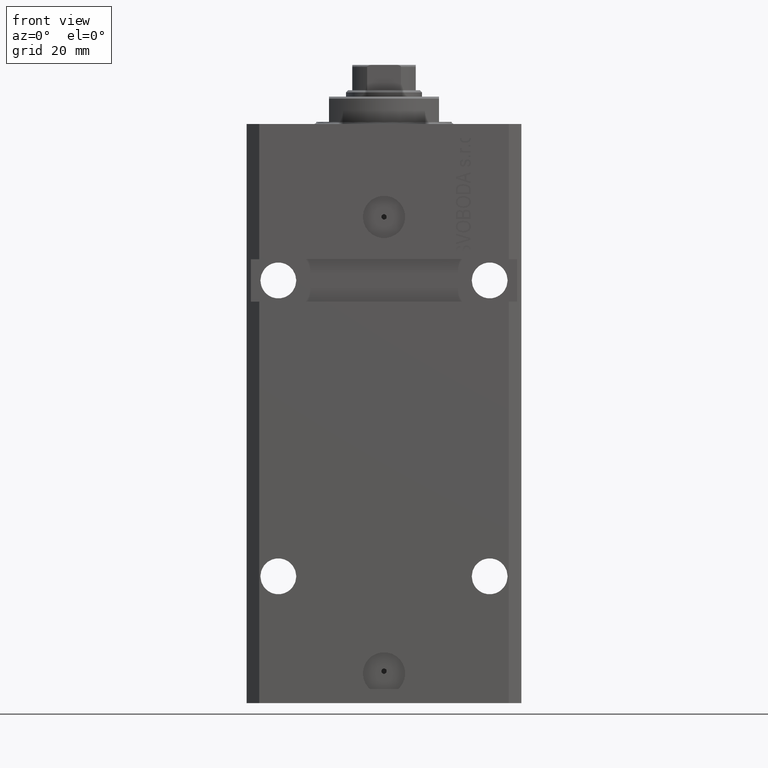
[diagram: clean part render]
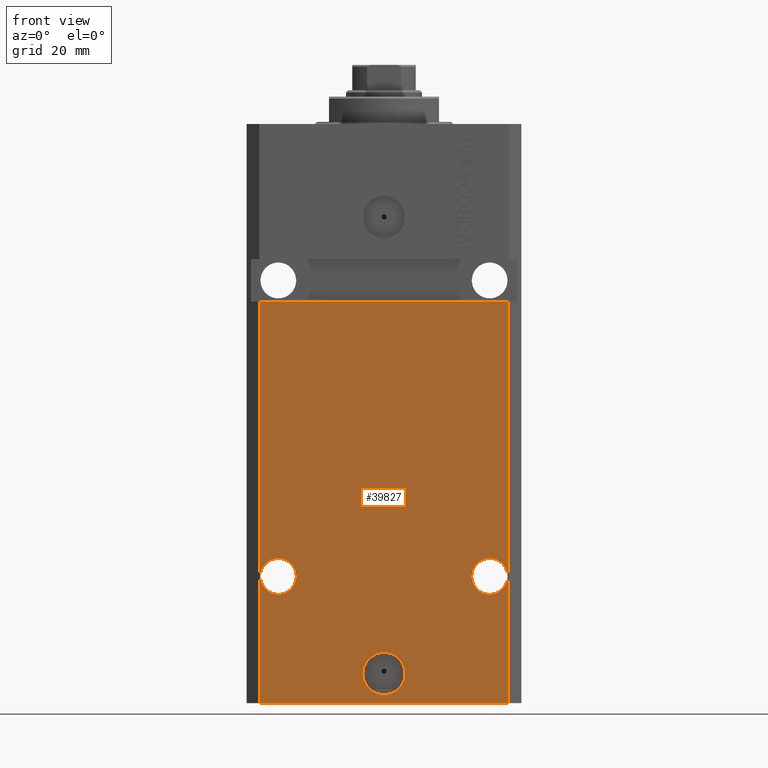
[diagram: same view with one face highlighted and labeled with its STEP entity id]
A machine part, front view. The second image highlights one B-rep face of the part: STEP entity #39827.
In plain terms, the highlighted planar face has unit normal (0, -1, 0).
Its self-contained STEP definition (entity closure, byte-faithful):
#122 = ORIENTED_EDGE ( 'NONE', *, *, #18421, .T. ) ;
#819 = ORIENTED_EDGE ( 'NONE', *, *, #22085, .T. ) ;
#916 = ORIENTED_EDGE ( 'NONE', *, *, #27624, .F. ) ;
#1863 = VECTOR ( 'NONE', #29523, 1000.000000000000000 ) ;
#2477 = EDGE_CURVE ( 'NONE', #41288, #37267, #16300, .T. ) ;
#3043 = DIRECTION ( 'NONE',  ( -1.000000000000000000, 0.000000000000000000, 0.000000000000000000 ) ) ;
#3954 = DIRECTION ( 'NONE',  ( 1.176083712526788232E-16, -1.000000000000000000, 0.000000000000000000 ) ) ;
#4614 = EDGE_CURVE ( 'NONE', #25991, #37765, #7099, .T. ) ;
#5505 = VERTEX_POINT ( 'NONE', #9226 ) ;
#5695 = CARTESIAN_POINT ( 'NONE',  ( 29.49999999999650058, -22.49999999999949196, -41.99999999999998579 ) ) ;
#5844 = CARTESIAN_POINT ( 'NONE',  ( -5.000000000000003553, -22.49999999999949551, -130.0000000000000000 ) ) ;
#5951 = DIRECTION ( 'NONE',  ( -1.000000000000000000, 0.000000000000000000, 0.000000000000000000 ) ) ;
#6089 = EDGE_LOOP ( 'NONE', ( #916, #39915, #819, #122 ) ) ;
#7099 = LINE ( 'NONE', #15114, #9283 ) ;
#7357 = AXIS2_PLACEMENT_3D ( 'NONE', #14211, #3954, #7626 ) ;
#7590 = EDGE_CURVE ( 'NONE', #37267, #41288, #39744, .T. ) ;
#7611 = VERTEX_POINT ( 'NONE', #9612 ) ;
#7626 = DIRECTION ( 'NONE',  ( 1.000000000000000000, 0.000000000000000000, 0.000000000000000000 ) ) ;
#8156 = EDGE_CURVE ( 'NONE', #12591, #47403, #47579, .T. ) ;
#8184 = ORIENTED_EDGE ( 'NONE', *, *, #31926, .F. ) ;
#9226 = CARTESIAN_POINT ( 'NONE',  ( 29.24999999998906119, -22.49999999999949196, -107.0000000000000000 ) ) ;
#9283 = VECTOR ( 'NONE', #33408, 1000.000000000000000 ) ;
#9612 = CARTESIAN_POINT ( 'NONE',  ( 20.75000000001096012, -22.49999999999949196, -107.0000000000000000 ) ) ;
#10598 = CARTESIAN_POINT ( 'NONE',  ( -29.49999999999650413, -22.49999999999949907, -137.0000000000000000 ) ) ;
#11730 = EDGE_CURVE ( 'NONE', #47403, #12591, #33652, .T. ) ;
#12591 = VERTEX_POINT ( 'NONE', #21076 ) ;
#12688 = AXIS2_PLACEMENT_3D ( 'NONE', #26746, #41640, #12857 ) ;
#12857 = DIRECTION ( 'NONE',  ( 1.000000000000000000, 0.000000000000000000, 0.000000000000000000 ) ) ;
#13446 = EDGE_CURVE ( 'NONE', #7611, #5505, #33683, .T. ) ;
#14207 = EDGE_LOOP ( 'NONE', ( #45635, #25629 ) ) ;
#14211 = CARTESIAN_POINT ( 'NONE',  ( 25.00000000000001066, -22.49999999999949196, -107.0000000000000000 ) ) ;
#15099 = LINE ( 'NONE', #18753, #17346 ) ;
#15114 = CARTESIAN_POINT ( 'NONE',  ( -29.49999999999650413, -22.49999999999949907, -137.0000000000000000 ) ) ;
#16219 = CARTESIAN_POINT ( 'NONE',  ( -29.49999999999650413, -22.49999999999949907, -137.0000000000000000 ) ) ;
#16300 = CIRCLE ( 'NONE', #31894, 5.000000000000006217 ) ;
#16369 = VERTEX_POINT ( 'NONE', #5695 ) ;
#16451 = DIRECTION ( 'NONE',  ( 1.176083712526788232E-16, -1.000000000000000000, 0.000000000000000000 ) ) ;
#16530 = EDGE_LOOP ( 'NONE', ( #8184, #34459 ) ) ;
#16701 = DIRECTION ( 'NONE',  ( 1.000000000000000000, 1.176083712526788232E-16, 0.000000000000000000 ) ) ;
#17346 = VECTOR ( 'NONE', #37778, 1000.000000000000000 ) ;
#17506 = VECTOR ( 'NONE', #16701, 1000.000000000000000 ) ;
#18421 = EDGE_CURVE ( 'NONE', #23924, #16369, #33190, .T. ) ;
#18753 = CARTESIAN_POINT ( 'NONE',  ( -32.49999999999650413, -22.49999999999949907, -41.99999999999999289 ) ) ;
#20121 = CARTESIAN_POINT ( 'NONE',  ( 2.646188353185214061E-15, -22.49999999999949551, -130.0000000000000000 ) ) ;
#21076 = CARTESIAN_POINT ( 'NONE',  ( -29.24999999998905409, -22.49999999999949907, -107.0000000000000000 ) ) ;
#22085 = EDGE_CURVE ( 'NONE', #25991, #23924, #39144, .T. ) ;
#23022 = ORIENTED_EDGE ( 'NONE', *, *, #2477, .F. ) ;
#23924 = VERTEX_POINT ( 'NONE', #46492 ) ;
#25629 = ORIENTED_EDGE ( 'NONE', *, *, #8156, .F. ) ;
#25717 = AXIS2_PLACEMENT_3D ( 'NONE', #36913, #44477, #3043 ) ;
#25991 = VERTEX_POINT ( 'NONE', #30911 ) ;
#26746 = CARTESIAN_POINT ( 'NONE',  ( 25.00000000000001066, -22.49999999999949196, -107.0000000000000000 ) ) ;
#27624 = EDGE_CURVE ( 'NONE', #37765, #16369, #15099, .T. ) ;
#27643 = DIRECTION ( 'NONE',  ( 1.176083712526788232E-16, -1.000000000000000000, 0.000000000000000000 ) ) ;
#28131 = DIRECTION ( 'NONE',  ( 1.176083712526788232E-16, -1.000000000000000000, 0.000000000000000000 ) ) ;
#29353 = DIRECTION ( 'NONE',  ( 1.176083712526788232E-16, -1.000000000000000000, 0.000000000000000000 ) ) ;
#29523 = DIRECTION ( 'NONE',  ( 0.000000000000000000, 0.000000000000000000, 1.000000000000000000 ) ) ;
#30060 = FACE_BOUND ( 'NONE', #39739, .T. ) ;
#30911 = CARTESIAN_POINT ( 'NONE',  ( -29.49999999999650413, -22.49999999999949907, -137.0000000000000000 ) ) ;
#31326 = DIRECTION ( 'NONE',  ( 1.000000000000000000, 0.000000000000000000, 0.000000000000000000 ) ) ;
#31754 = CARTESIAN_POINT ( 'NONE',  ( 5.000000000000008882, -22.49999999999949551, -130.0000000000000000 ) ) ;
#31894 = AXIS2_PLACEMENT_3D ( 'NONE', #20121, #16451, #31326 ) ;
#31926 = EDGE_CURVE ( 'NONE', #5505, #7611, #40087, .T. ) ;
#32029 = DIRECTION ( 'NONE',  ( 1.000000000000000000, 0.000000000000000000, 0.000000000000000000 ) ) ;
#32363 = CARTESIAN_POINT ( 'NONE',  ( -20.75000000001095302, -22.49999999999949907, -107.0000000000000000 ) ) ;
#33190 = LINE ( 'NONE', #48088, #1863 ) ;
#33249 = PLANE ( 'NONE',  #33971 ) ;
#33408 = DIRECTION ( 'NONE',  ( 0.000000000000000000, 0.000000000000000000, 1.000000000000000000 ) ) ;
#33652 = CIRCLE ( 'NONE', #36791, 4.249999999989050536 ) ;
#33683 = CIRCLE ( 'NONE', #12688, 4.249999999989050536 ) ;
#33968 = FACE_OUTER_BOUND ( 'NONE', #6089, .T. ) ;
#33971 = AXIS2_PLACEMENT_3D ( 'NONE', #10598, #29353, #44237 ) ;
#34288 = AXIS2_PLACEMENT_3D ( 'NONE', #39112, #28131, #32029 ) ;
#34459 = ORIENTED_EDGE ( 'NONE', *, *, #13446, .F. ) ;
#35441 = CARTESIAN_POINT ( 'NONE',  ( -25.00000000000000355, -22.49999999999949907, -107.0000000000000000 ) ) ;
#36791 = AXIS2_PLACEMENT_3D ( 'NONE', #35441, #27643, #5951 ) ;
#36913 = CARTESIAN_POINT ( 'NONE',  ( -25.00000000000000355, -22.49999999999949907, -107.0000000000000000 ) ) ;
#37267 = VERTEX_POINT ( 'NONE', #31754 ) ;
#37754 = CARTESIAN_POINT ( 'NONE',  ( -29.49999999999650413, -22.49999999999949907, -41.99999999999999289 ) ) ;
#37765 = VERTEX_POINT ( 'NONE', #37754 ) ;
#37778 = DIRECTION ( 'NONE',  ( 1.000000000000000000, 1.067522139062765303E-16, 1.067522139062765303E-16 ) ) ;
#38997 = ORIENTED_EDGE ( 'NONE', *, *, #7590, .F. ) ;
#39112 = CARTESIAN_POINT ( 'NONE',  ( 2.646188353185214061E-15, -22.49999999999949551, -130.0000000000000000 ) ) ;
#39144 = LINE ( 'NONE', #16219, #17506 ) ;
#39739 = EDGE_LOOP ( 'NONE', ( #38997, #23022 ) ) ;
#39744 = CIRCLE ( 'NONE', #34288, 5.000000000000006217 ) ;
#39827 = ADVANCED_FACE ( 'NONE', ( #30060, #44954, #41297, #33968 ), #33249, .T. ) ;
#39915 = ORIENTED_EDGE ( 'NONE', *, *, #4614, .F. ) ;
#40087 = CIRCLE ( 'NONE', #7357, 4.249999999989050536 ) ;
#41288 = VERTEX_POINT ( 'NONE', #5844 ) ;
#41297 = FACE_BOUND ( 'NONE', #14207, .T. ) ;
#41640 = DIRECTION ( 'NONE',  ( 1.176083712526788232E-16, -1.000000000000000000, 0.000000000000000000 ) ) ;
#44237 = DIRECTION ( 'NONE',  ( 1.000000000000000000, 1.176083712526788232E-16, 0.000000000000000000 ) ) ;
#44477 = DIRECTION ( 'NONE',  ( 1.176083712526788232E-16, -1.000000000000000000, 0.000000000000000000 ) ) ;
#44954 = FACE_BOUND ( 'NONE', #16530, .T. ) ;
#45635 = ORIENTED_EDGE ( 'NONE', *, *, #11730, .F. ) ;
#46492 = CARTESIAN_POINT ( 'NONE',  ( 29.49999999999650413, -22.49999999999949196, -137.0000000000000000 ) ) ;
#47403 = VERTEX_POINT ( 'NONE', #32363 ) ;
#47579 = CIRCLE ( 'NONE', #25717, 4.249999999989050536 ) ;
#48088 = CARTESIAN_POINT ( 'NONE',  ( 29.49999999999650413, -22.49999999999949196, -137.0000000000000000 ) ) ;